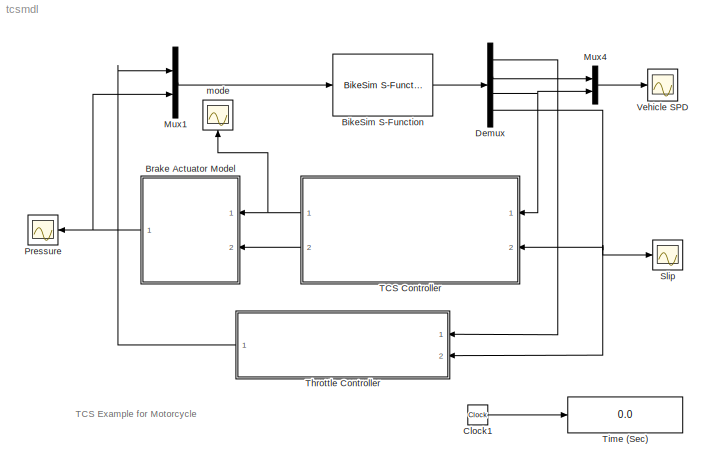
MODEL tcsmdl
KIND model
CONFIG AbsTol = auto
CONFIG FixedStep = TSTEP
CONFIG MaxStep = auto
CONFIG MinStep = auto
CONFIG PreLoadFcn = cd programs<path> ..\\..
CONFIG RelTol = 1e-3
CONFIG Solver = ode45
CONFIG SolverMode = Auto
CONFIG StartTime = 0
CONFIG StopTime = 15
BLOCK [Reference] BikeSim S-Function  REF=Solver_SF/BikeSim S-Function
  AncestorBlock = Solver_SF/BikeSim S-Function
  AttributesFormatString = Vehicle Code: %<VehicleCode>
  Ports = [1, 1]
  Priority = 1
  SIMFILE = simfile
  SourceBlock = Solver_SF/BikeSim S-Function
  SourceType = Vehicle math model library
  VehicleCode = i_i
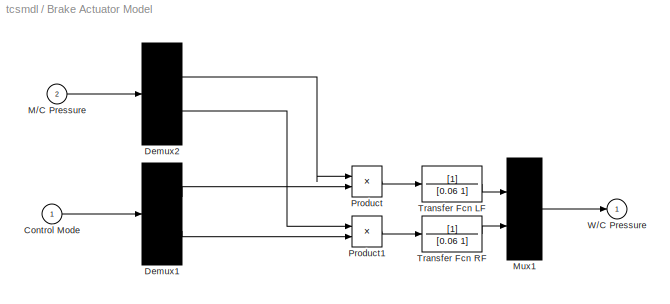
BLOCK [SubSystem] Brake Actuator Model
  Ports = [2, 1]
  TreatAsAtomicUnit = off
BLOCK [Inport] Brake Actuator Model/Control Mode
BLOCK [Demux] Brake Actuator Model/Demux1
  Outputs = 2
  Ports = [1, 2]
BLOCK [Demux] Brake Actuator Model/Demux2
  Outputs = 2
  Ports = [1, 2]
BLOCK [Inport] Brake Actuator Model/M//C Pressure
  Port = 2
BLOCK [Mux] Brake Actuator Model/Mux1
  Inputs = 2
  Ports = [2, 1]
BLOCK [Product] Brake Actuator Model/Product
  Ports = [2, 1]
BLOCK [Product] Brake Actuator Model/Product1
  Ports = [2, 1]
BLOCK [TransferFcn] Brake Actuator Model/Transfer Fcn LF
  Denominator = [0.06 1]
BLOCK [TransferFcn] Brake Actuator Model/Transfer Fcn RF
  Denominator = [0.06 1]
BLOCK [Outport] Brake Actuator Model/W//C Pressure
  InitialOutput = 0
BLOCK [Clock] Clock1
  Decimation = 10
BLOCK [Demux] Demux
  Outputs = [1 2 1 2 ]
  Ports = [1, 4]
BLOCK [Mux] Mux1
  DisplayOption = bar
  Inputs = 2
  Ports = [2, 1]
BLOCK [Mux] Mux4
  DisplayOption = bar
  Inputs = 2
  Ports = [2, 1]
BLOCK [Scope] Pressure
  DataFormat = Array
  LimitDataPoints = off
  NumInputPorts = 1
  Ports = [1]
  SampleTime = 100
  SaveName = ScopeData3
  TickLabels = on
  TimeRange = 15
  YMax = 4
  YMin = -2
  ZoomMode = yonly
BLOCK [Scope] Slip
  DataFormat = Array
  LimitDataPoints = off
  NumInputPorts = 1
  Ports = [1]
  SampleTime = 100
  SaveName = ScopeData4
  TickLabels = on
  YMax = 2
  YMin = -1
  ZoomMode = yonly
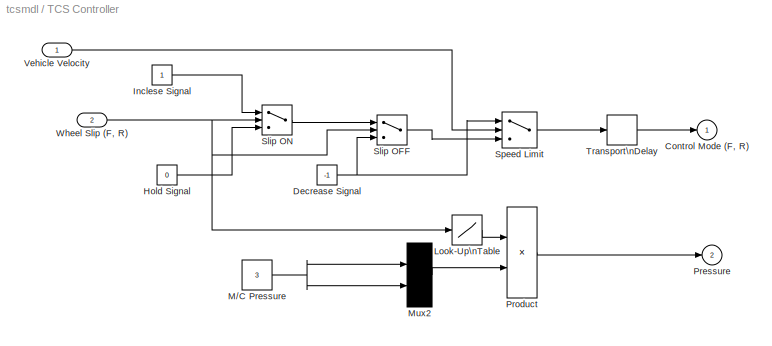
BLOCK [SubSystem] TCS Controller
  Ports = [2, 2]
  TreatAsAtomicUnit = off
BLOCK [Outport] TCS Controller/Control Mode (F, R)
  InitialOutput = 0
BLOCK [Constant] TCS Controller/Decrease Signal
  Value = -1
BLOCK [Constant] TCS Controller/Hold Signal
  Value = 0
BLOCK [Constant] TCS Controller/Inclese Signal
BLOCK [Lookup] TCS Controller/Look-Up\nTable
  InputValues = [-1,0,0.01,0.05,1,2]
  OutputValues = [0,0,0.2,0.2,1.5,1.5]
BLOCK [Constant] TCS Controller/M//C Pressure
  Value = 3
BLOCK [Mux] TCS Controller/Mux2
  Inputs = 2
  Ports = [2, 1]
BLOCK [Outport] TCS Controller/Pressure
  InitialOutput = 0
  Port = 2
BLOCK [Product] TCS Controller/Product
  Ports = [2, 1]
BLOCK [Switch] TCS Controller/Slip OFF
  Threshold = 0.05
BLOCK [Switch] TCS Controller/Slip ON
  Threshold = 0.1
BLOCK [Switch] TCS Controller/Speed Limit
  Threshold = 100
BLOCK [TransportDelay] TCS Controller/Transport\nDelay
  DelayTime = 0.005
BLOCK [Inport] TCS Controller/Vehicle Velocity
BLOCK [Inport] TCS Controller/Wheel Slip (F, R)
  Port = 2
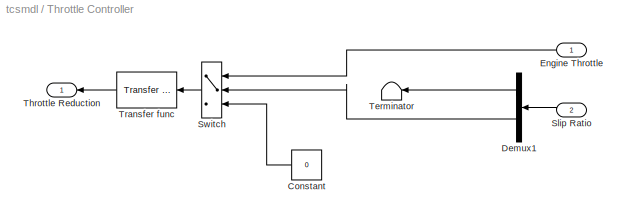
BLOCK [SubSystem] Throttle Controller
  Ports = [2, 1]
  TreatAsAtomicUnit = off
BLOCK [Constant] Throttle Controller/Constant
  Value = 0
BLOCK [Demux] Throttle Controller/Demux1
  Outputs = 2
  Ports = [1, 2]
BLOCK [Inport] Throttle Controller/Engine Throttle
BLOCK [Inport] Throttle Controller/Slip Ratio
  Port = 2
BLOCK [Switch] Throttle Controller/Switch
  Threshold = 0.2
BLOCK [Terminator] Throttle Controller/Terminator
BLOCK [Outport] Throttle Controller/Throttle Reduction
BLOCK [Reference] Throttle Controller/Transfer func  REF=simulink_extras/Additional\nLinear/Transfer Fcn\n(with initial outputs)
  D = [1  1]
  N = [-10]
  Ports = [1, 1]
  SourceBlock = simulink_extras/Additional\nLinear/Transfer Fcn\n(with initial outputs)
  SourceType = Transfer Function with Initial Outputs
  U0 = 0
  Y0 = 0
BLOCK [Display] Time (Sec)
  Decimation = 1
  Ports = [1]
BLOCK [Scope] Vehicle SPD
  DataFormat = StructureWithTime
  LimitDataPoints = off
  NumInputPorts = 1
  Ports = [1]
  SaveName = ScopeData1
  YMax = 150
  YMin = -10
BLOCK [Scope] mode
  DataFormat = Array
  LimitDataPoints = off
  NumInputPorts = 1
  Ports = [1]
  SampleTime = 100
  SaveName = ScopeData5
  TickLabels = on
  YMax = 1
  YMin = -1
ANNOTATION (root): TCS Example for Motorcycle
LINE BikeSim S-Function:1 -> Demux:1
LINE Brake Actuator Model/Control Mode:1 -> Brake Actuator Model/Demux1:1
LINE Brake Actuator Model/Demux1:1 -> Brake Actuator Model/Product:2
LINE Brake Actuator Model/Demux1:2 -> Brake Actuator Model/Product1:2
LINE Brake Actuator Model/Demux2:1 -> Brake Actuator Model/Product:1
LINE Brake Actuator Model/Demux2:2 -> Brake Actuator Model/Product1:1
LINE Brake Actuator Model/M//C Pressure:1 -> Brake Actuator Model/Demux2:1
LINE Brake Actuator Model/Mux1:1 -> Brake Actuator Model/W//C Pressure:1
LINE Brake Actuator Model/Product1:1 -> Brake Actuator Model/Transfer Fcn RF:1
LINE Brake Actuator Model/Product:1 -> Brake Actuator Model/Transfer Fcn LF:1
LINE Brake Actuator Model/Transfer Fcn LF:1 -> Brake Actuator Model/Mux1:1
LINE Brake Actuator Model/Transfer Fcn RF:1 -> Brake Actuator Model/Mux1:2
NET Brake Actuator Model:1 -> Mux1:2, Pressure:1
LINE Clock1:1 -> Time (Sec):1
LINE Demux:1 -> Throttle Controller:1
LINE Demux:2 -> Mux4:1
NET Demux:3 -> Mux4:2, TCS Controller:1
NET Demux:4 -> Slip:1, TCS Controller:2, Throttle Controller:2
LINE Mux1:1 -> BikeSim S-Function:1
LINE Mux4:1 -> Vehicle SPD:1
NET TCS Controller/Decrease Signal:1 -> TCS Controller/Slip OFF:3, TCS Controller/Speed Limit:1
LINE TCS Controller/Hold Signal:1 -> TCS Controller/Slip ON:3
LINE TCS Controller/Inclese Signal:1 -> TCS Controller/Slip ON:1
LINE TCS Controller/Look-Up\nTable:1 -> TCS Controller/Product:1
NET TCS Controller/M//C Pressure:1 -> TCS Controller/Mux2:1, TCS Controller/Mux2:2
LINE TCS Controller/Mux2:1 -> TCS Controller/Product:2
LINE TCS Controller/Product:1 -> TCS Controller/Pressure:1
LINE TCS Controller/Slip OFF:1 -> TCS Controller/Speed Limit:3
LINE TCS Controller/Slip ON:1 -> TCS Controller/Slip OFF:1
LINE TCS Controller/Speed Limit:1 -> TCS Controller/Transport\nDelay:1
LINE TCS Controller/Transport\nDelay:1 -> TCS Controller/Control Mode (F, R):1
LINE TCS Controller/Vehicle Velocity:1 -> TCS Controller/Speed Limit:2
NET TCS Controller/Wheel Slip (F, R):1 -> TCS Controller/Look-Up\nTable:1, TCS Controller/Slip OFF:2, TCS Controller/Slip ON:2
NET TCS Controller:1 -> Brake Actuator Model:1, mode:1
LINE TCS Controller:2 -> Brake Actuator Model:2
LINE Throttle Controller/Constant:1 -> Throttle Controller/Switch:3
LINE Throttle Controller/Demux1:1 -> Throttle Controller/Terminator:1
LINE Throttle Controller/Demux1:2 -> Throttle Controller/Switch:2
LINE Throttle Controller/Engine Throttle:1 -> Throttle Controller/Switch:1
LINE Throttle Controller/Slip Ratio:1 -> Throttle Controller/Demux1:1
LINE Throttle Controller/Switch:1 -> Throttle Controller/Transfer func:1
LINE Throttle Controller/Transfer func:1 -> Throttle Controller/Throttle Reduction:1
LINE Throttle Controller:1 -> Mux1:1
note: NET lines group one-source signal fan-out (src -> all destinations, sorted); 1:1 wires keep LINE
note: 1 file-system path scrubbed to <path> (not preserved elsewhere — flat text is the only slx artifact)
